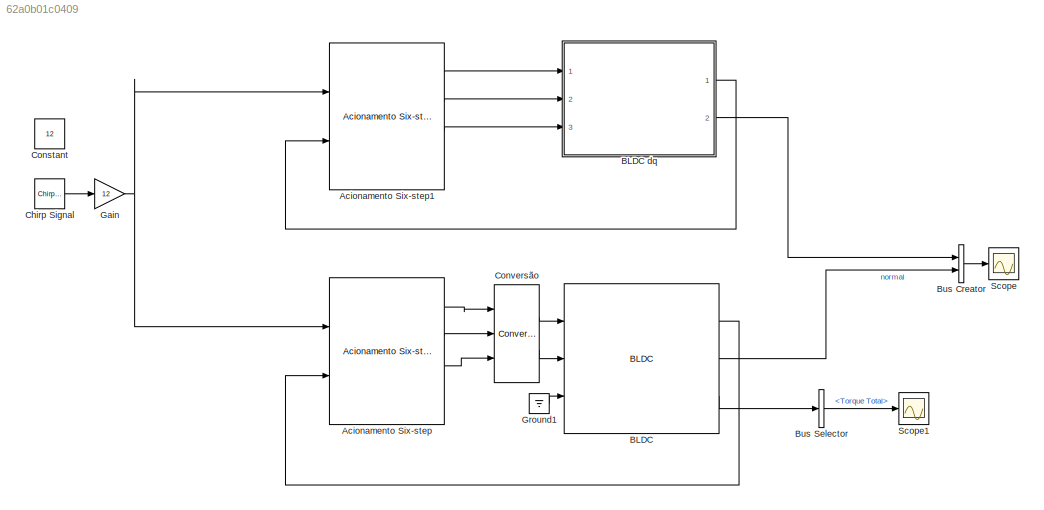
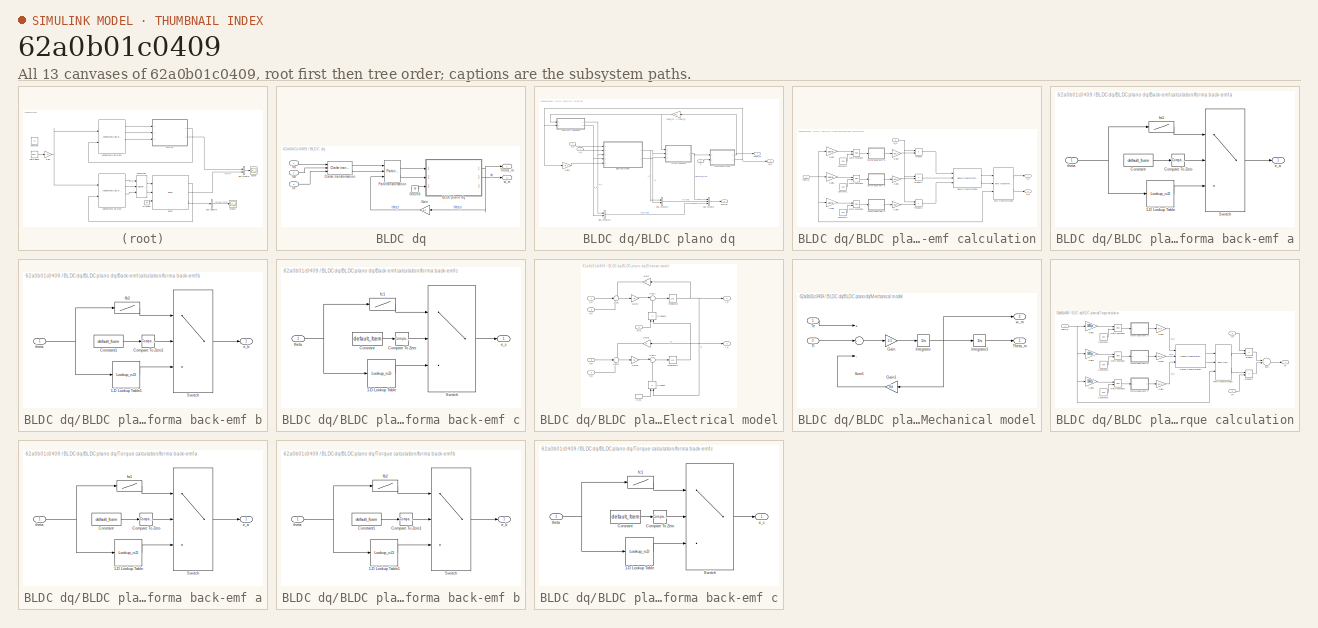
[diagram: thumbnail index - all 13 canvases of the model, root first then tree order]
MODEL slx_62a0b01c0409
KIND model
BLOCK [Reference] Acionamento Six-step  REF=BLDC/Acionamento Six-step
  P = 8
  Ports = [2, 4]
  SourceBlock = BLDC/Acionamento Six-step
  SourceType = Acionamento six-step
BLOCK [Reference] Acionamento Six-step1  REF=BLDC/Acionamento Six-step
  P = 8
  Ports = [2, 4]
  SourceBlock = BLDC/Acionamento Six-step
  SourceType = Acionamento six-step
BLOCK [Reference] BLDC  REF=BLDC/BLDC
  J = 1.39e-6
  Kd = 0
  Ke = 15.7e-3/1.19
  Kt = 15.7e-3/1.19
  L = 2.04/2000
  P = 8
  Ports = [3, 3]
  R = 10.1/2
  SourceBlock = BLDC/BLDC
  SourceType = Simulador de um motor BLDC
  default_fcem = on
  fcem_a = fcem_a
  fcem_b = fcem_b
  fcem_c = fcem_c
BLOCK [SubSystem] BLDC dq
  FunctionWithSeparateData = off
  MaskHideContents = off
  MinAlgLoopOccurrences = off
  Opaque = off
  Ports = [3, 2]
  PropExecContextOutsideSubsystem = off
  RTWSystemCode = Auto
  RequestExecContextInheritance = off
BLOCK [SubSystem] BLDC dq/BLDC plano dq
  FunctionWithSeparateData = off
  MaskHideContents = off
  MinAlgLoopOccurrences = off
  Opaque = off
  Ports = [3, 3]
  PropExecContextOutsideSubsystem = off
  RTWSystemCode = Auto
  RequestExecContextInheritance = off
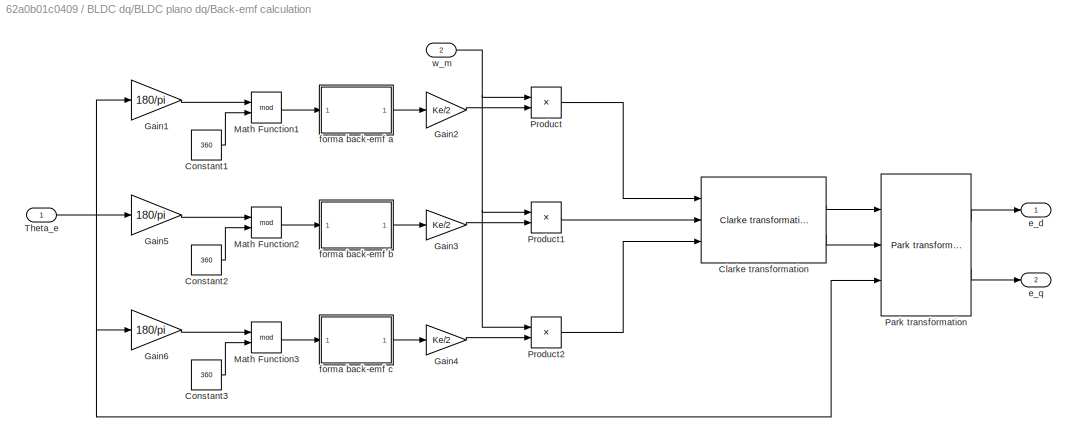
BLOCK [SubSystem] BLDC dq/BLDC plano dq/Back-emf calculation
  FunctionWithSeparateData = off
  MaskHideContents = off
  MinAlgLoopOccurrences = off
  Opaque = off
  Ports = [2, 2]
  PropExecContextOutsideSubsystem = off
  RTWSystemCode = Auto
  RequestExecContextInheritance = off
BLOCK [Reference] BLDC dq/BLDC plano dq/Back-emf calculation/Clarke transformation  REF=Tools/Clarke transformation
  Ports = [3, 2]
  SourceBlock = Tools/Clarke transformation
  SourceType = SubSystem
BLOCK [Constant] BLDC dq/BLDC plano dq/Back-emf calculation/Constant1
  Value = 360
BLOCK [Constant] BLDC dq/BLDC plano dq/Back-emf calculation/Constant2
  Value = 360
BLOCK [Constant] BLDC dq/BLDC plano dq/Back-emf calculation/Constant3
  Value = 360
BLOCK [Gain] BLDC dq/BLDC plano dq/Back-emf calculation/Gain1
  Gain = 180/pi
  OutDataTypeStr = Inherit: Inherit via internal rule
  ParamDataTypeStr = Inherit: Inherit via internal rule
  SaturateOnIntegerOverflow = off
BLOCK [Gain] BLDC dq/BLDC plano dq/Back-emf calculation/Gain2
  Gain = Ke/2
  OutDataTypeStr = Inherit: Inherit via internal rule
  ParamDataTypeStr = Inherit: Inherit via internal rule
  SaturateOnIntegerOverflow = off
BLOCK [Gain] BLDC dq/BLDC plano dq/Back-emf calculation/Gain3
  Gain = Ke/2
  OutDataTypeStr = Inherit: Inherit via internal rule
  ParamDataTypeStr = Inherit: Inherit via internal rule
  SaturateOnIntegerOverflow = off
BLOCK [Gain] BLDC dq/BLDC plano dq/Back-emf calculation/Gain4
  Gain = Ke/2
  OutDataTypeStr = Inherit: Inherit via internal rule
  ParamDataTypeStr = Inherit: Inherit via internal rule
  SaturateOnIntegerOverflow = off
BLOCK [Gain] BLDC dq/BLDC plano dq/Back-emf calculation/Gain5
  Gain = 180/pi
  OutDataTypeStr = Inherit: Inherit via internal rule
  ParamDataTypeStr = Inherit: Inherit via internal rule
  SaturateOnIntegerOverflow = off
BLOCK [Gain] BLDC dq/BLDC plano dq/Back-emf calculation/Gain6
  Gain = 180/pi
  OutDataTypeStr = Inherit: Inherit via internal rule
  ParamDataTypeStr = Inherit: Inherit via internal rule
  SaturateOnIntegerOverflow = off
BLOCK [Math] BLDC dq/BLDC plano dq/Back-emf calculation/Math Function1
  Operator = mod
  Ports = [2, 1]
BLOCK [Math] BLDC dq/BLDC plano dq/Back-emf calculation/Math Function2
  Operator = mod
  Ports = [2, 1]
BLOCK [Math] BLDC dq/BLDC plano dq/Back-emf calculation/Math Function3
  Operator = mod
  Ports = [2, 1]
BLOCK [Reference] BLDC dq/BLDC plano dq/Back-emf calculation/Park transformation   REF=Tools/Park transformation 
  Ports = [3, 2]
  SourceBlock = Tools/Park transformation
  SourceType = SubSystem
BLOCK [Product] BLDC dq/BLDC plano dq/Back-emf calculation/Product
  InputSameDT = off
  OutDataTypeStr = Inherit: Inherit via internal rule
  Ports = [2, 1]
  SaturateOnIntegerOverflow = off
BLOCK [Product] BLDC dq/BLDC plano dq/Back-emf calculation/Product1
  InputSameDT = off
  OutDataTypeStr = Inherit: Inherit via internal rule
  Ports = [2, 1]
  SaturateOnIntegerOverflow = off
BLOCK [Product] BLDC dq/BLDC plano dq/Back-emf calculation/Product2
  InputSameDT = off
  OutDataTypeStr = Inherit: Inherit via internal rule
  Ports = [2, 1]
  SaturateOnIntegerOverflow = off
BLOCK [Inport] BLDC dq/BLDC plano dq/Back-emf calculation/Theta_e
  IconDisplay = Port number
BLOCK [Outport] BLDC dq/BLDC plano dq/Back-emf calculation/e_d
  IconDisplay = Port number
BLOCK [Outport] BLDC dq/BLDC plano dq/Back-emf calculation/e_q
  IconDisplay = Port number
  Port = 2
BLOCK [SubSystem] BLDC dq/BLDC plano dq/Back-emf calculation/forma back-emf a
  FunctionWithSeparateData = off
  MaskHideContents = off
  MinAlgLoopOccurrences = off
  Opaque = off
  Ports = [1, 1]
  PropExecContextOutsideSubsystem = off
  RTWSystemCode = Auto
  RequestExecContextInheritance = off
BLOCK [Lookup_n-D] BLDC dq/BLDC plano dq/Back-emf calculation/forma back-emf a/1-D Lookup Table
  BreakpointsForDimension1 = fcem_a(:,1)
  NumberOfTableDimensions = 1
  Ports = [1, 1]
  RndMeth = Simplest
  Table = fcem_a(:,2)
BLOCK [Reference] BLDC dq/BLDC plano dq/Back-emf calculation/forma back-emf a/Compare To Zero  REF=simulink/Logic and Bit
Operations/Compare
To Zero
  OutDataTypeStr = boolean
  Ports = [1, 1]
  SourceBlock = simulink/Logic and Bit\nOperations/Compare\nTo Zero
  SourceType = Compare To Zero
  ZeroCross = on
  relop = >
BLOCK [Constant] BLDC dq/BLDC plano dq/Back-emf calculation/forma back-emf a/Constant
  Value = default_fcem
BLOCK [Switch] BLDC dq/BLDC plano dq/Back-emf calculation/forma back-emf a/Switch
  InputSameDT = off
  SaturateOnIntegerOverflow = off
BLOCK [Outport] BLDC dq/BLDC plano dq/Back-emf calculation/forma back-emf a/e_a
  IconDisplay = Port number
BLOCK [Lookup] BLDC dq/BLDC plano dq/Back-emf calculation/forma back-emf a/fa1
  InputValues = [0 30 60 90 120 150 180 210 240 270 300 330 360]
  SaturateOnIntegerOverflow = off
  Table = [ 1 1 1 0 -1 -1 -1 -1 -1 0 1 1 1]
BLOCK [Inport] BLDC dq/BLDC plano dq/Back-emf calculation/forma back-emf a/theta
  IconDisplay = Port number
BLOCK [SubSystem] BLDC dq/BLDC plano dq/Back-emf calculation/forma back-emf b
  FunctionWithSeparateData = off
  MaskHideContents = off
  MinAlgLoopOccurrences = off
  Opaque = off
  Ports = [1, 1]
  PropExecContextOutsideSubsystem = off
  RTWSystemCode = Auto
  RequestExecContextInheritance = off
BLOCK [Lookup_n-D] BLDC dq/BLDC plano dq/Back-emf calculation/forma back-emf b/1-D Lookup Table1
  BreakpointsForDimension1 = fcem_b(:,1)
  NumberOfTableDimensions = 1
  Ports = [1, 1]
  RndMeth = Simplest
  Table = fcem_b(:,2)
BLOCK [Reference] BLDC dq/BLDC plano dq/Back-emf calculation/forma back-emf b/Compare To Zero1  REF=simulink/Logic and Bit
Operations/Compare
To Zero
  OutDataTypeStr = boolean
  Ports = [1, 1]
  SourceBlock = simulink/Logic and Bit\nOperations/Compare\nTo Zero
  SourceType = Compare To Zero
  ZeroCross = on
  relop = >
BLOCK [Constant] BLDC dq/BLDC plano dq/Back-emf calculation/forma back-emf b/Constant1
  Value = default_fcem
BLOCK [Switch] BLDC dq/BLDC plano dq/Back-emf calculation/forma back-emf b/Switch
  InputSameDT = off
  SaturateOnIntegerOverflow = off
BLOCK [Outport] BLDC dq/BLDC plano dq/Back-emf calculation/forma back-emf b/e_b
  IconDisplay = Port number
BLOCK [Lookup] BLDC dq/BLDC plano dq/Back-emf calculation/forma back-emf b/fb2
  InputValues = [0 30 60 90 120 150 180 210 240 270 300 330 360]
  SaturateOnIntegerOverflow = off
  Table = [-1 0 1 1 1 1 1 0 -1 -1 -1 -1 -1]
BLOCK [Inport] BLDC dq/BLDC plano dq/Back-emf calculation/forma back-emf b/theta
  IconDisplay = Port number
BLOCK [SubSystem] BLDC dq/BLDC plano dq/Back-emf calculation/forma back-emf c
  FunctionWithSeparateData = off
  MaskHideContents = off
  MinAlgLoopOccurrences = off
  Opaque = off
  Ports = [1, 1]
  PropExecContextOutsideSubsystem = off
  RTWSystemCode = Auto
  RequestExecContextInheritance = off
BLOCK [Lookup_n-D] BLDC dq/BLDC plano dq/Back-emf calculation/forma back-emf c/1-D Lookup Table
  BreakpointsForDimension1 = fcem_c(:,1)
  NumberOfTableDimensions = 1
  Ports = [1, 1]
  RndMeth = Simplest
  Table = fcem_c(:,2)
BLOCK [Reference] BLDC dq/BLDC plano dq/Back-emf calculation/forma back-emf c/Compare To Zero  REF=simulink/Logic and Bit
Operations/Compare
To Zero
  OutDataTypeStr = boolean
  Ports = [1, 1]
  SourceBlock = simulink/Logic and Bit\nOperations/Compare\nTo Zero
  SourceType = Compare To Zero
  ZeroCross = on
  relop = >
BLOCK [Constant] BLDC dq/BLDC plano dq/Back-emf calculation/forma back-emf c/Constant
  Value = default_fcem
BLOCK [Switch] BLDC dq/BLDC plano dq/Back-emf calculation/forma back-emf c/Switch
  InputSameDT = off
  SaturateOnIntegerOverflow = off
BLOCK [Outport] BLDC dq/BLDC plano dq/Back-emf calculation/forma back-emf c/e_c
  IconDisplay = Port number
BLOCK [Lookup] BLDC dq/BLDC plano dq/Back-emf calculation/forma back-emf c/fc1
  InputValues = [0 30 60 90 120 150 180 210 240 270 300 330 360]
  SaturateOnIntegerOverflow = off
  Table = [-1 -1 -1 -1 -1 0 1 1 1 1 1 0 -1]
BLOCK [Inport] BLDC dq/BLDC plano dq/Back-emf calculation/forma back-emf c/theta
  IconDisplay = Port number
BLOCK [Inport] BLDC dq/BLDC plano dq/Back-emf calculation/w_m
  IconDisplay = Port number
  Port = 2
BLOCK [BusCreator] BLDC dq/BLDC plano dq/Bus Creator
  DisplayOption = bar
  Inputs = 3
  Ports = [3, 1]
BLOCK [BusCreator] BLDC dq/BLDC plano dq/Bus Creator1
  DisplayOption = bar
  Inputs = 2
  Ports = [2, 1]
BLOCK [BusCreator] BLDC dq/BLDC plano dq/Bus Creator2
  DisplayOption = bar
  Inputs = 2
  Ports = [2, 1]
BLOCK [SubSystem] BLDC dq/BLDC plano dq/Electrical model
  FunctionWithSeparateData = off
  MaskHideContents = off
  MinAlgLoopOccurrences = off
  Opaque = off
  Ports = [5, 2]
  PropExecContextOutsideSubsystem = off
  RTWSystemCode = Auto
  RequestExecContextInheritance = off
BLOCK [Gain] BLDC dq/BLDC plano dq/Electrical model/Gain
  Gain = R
  OutDataTypeStr = Inherit: Inherit via internal rule
  ParamDataTypeStr = Inherit: Inherit via internal rule
  SaturateOnIntegerOverflow = off
BLOCK [Gain] BLDC dq/BLDC plano dq/Electrical model/Gain1
  Gain = 1/L
  OutDataTypeStr = Inherit: Inherit via internal rule
  ParamDataTypeStr = Inherit: Inherit via internal rule
  SaturateOnIntegerOverflow = off
BLOCK [Gain] BLDC dq/BLDC plano dq/Electrical model/Gain2
  Gain = R
  OutDataTypeStr = Inherit: Inherit via internal rule
  ParamDataTypeStr = Inherit: Inherit via internal rule
  SaturateOnIntegerOverflow = off
BLOCK [Gain] BLDC dq/BLDC plano dq/Electrical model/Gain3
  Gain = 1/L
  OutDataTypeStr = Inherit: Inherit via internal rule
  ParamDataTypeStr = Inherit: Inherit via internal rule
  SaturateOnIntegerOverflow = off
BLOCK [Integrator] BLDC dq/BLDC plano dq/Electrical model/Integrator
  Ports = [1, 1]
BLOCK [Integrator] BLDC dq/BLDC plano dq/Electrical model/Integrator1
  Ports = [1, 1]
BLOCK [Product] BLDC dq/BLDC plano dq/Electrical model/Product
  InputSameDT = off
  OutDataTypeStr = Inherit: Inherit via internal rule
  Ports = [2, 1]
  SaturateOnIntegerOverflow = off
BLOCK [Product] BLDC dq/BLDC plano dq/Electrical model/Product1
  InputSameDT = off
  OutDataTypeStr = Inherit: Inherit via internal rule
  Ports = [2, 1]
  SaturateOnIntegerOverflow = off
BLOCK [Sum] BLDC dq/BLDC plano dq/Electrical model/Sum
  IconShape = round
  InputSameDT = off
  Inputs = -+-
  OutDataTypeStr = Inherit: Inherit via internal rule
  Ports = [3, 1]
  SaturateOnIntegerOverflow = off
BLOCK [Sum] BLDC dq/BLDC plano dq/Electrical model/Sum1
  IconShape = round
  InputSameDT = off
  Inputs = |++
  OutDataTypeStr = Inherit: Inherit via internal rule
  Ports = [2, 1]
  SaturateOnIntegerOverflow = off
BLOCK [Sum] BLDC dq/BLDC plano dq/Electrical model/Sum2
  IconShape = round
  InputSameDT = off
  Inputs = -+-
  OutDataTypeStr = Inherit: Inherit via internal rule
  Ports = [3, 1]
  SaturateOnIntegerOverflow = off
BLOCK [Sum] BLDC dq/BLDC plano dq/Electrical model/Sum3
  IconShape = round
  InputSameDT = off
  Inputs = |+-
  OutDataTypeStr = Inherit: Inherit via internal rule
  Ports = [2, 1]
  SaturateOnIntegerOverflow = off
BLOCK [Inport] BLDC dq/BLDC plano dq/Electrical model/e_d
  IconDisplay = Port number
  Port = 3
BLOCK [Inport] BLDC dq/BLDC plano dq/Electrical model/e_q
  IconDisplay = Port number
  Port = 4
BLOCK [Outport] BLDC dq/BLDC plano dq/Electrical model/i_d
  IconDisplay = Port number
BLOCK [Outport] BLDC dq/BLDC plano dq/Electrical model/i_q
  IconDisplay = Port number
  Port = 2
BLOCK [Inport] BLDC dq/BLDC plano dq/Electrical model/u_d
  IconDisplay = Port number
BLOCK [Inport] BLDC dq/BLDC plano dq/Electrical model/u_q
  IconDisplay = Port number
  Port = 2
BLOCK [Inport] BLDC dq/BLDC plano dq/Electrical model/w_e
  IconDisplay = Port number
  Port = 5
BLOCK [InportShadow] BLDC dq/BLDC plano dq/Electrical model/w_e1
  IconDisplay = Port number
  LatchByDelayingOutsideSignal = off
  LatchInputForFeedbackSignals = off
  Port = 5
BLOCK [Gain] BLDC dq/BLDC plano dq/Gain1
  Gain = P/2
  OutDataTypeStr = Inherit: Inherit via internal rule
  ParamDataTypeStr = Inherit: Inherit via internal rule
  SaturateOnIntegerOverflow = off
BLOCK [SubSystem] BLDC dq/BLDC plano dq/Mechanical model
  FunctionWithSeparateData = off
  MaskHideContents = off
  MinAlgLoopOccurrences = off
  Opaque = off
  Ports = [2, 2]
  PropExecContextOutsideSubsystem = off
  RTWSystemCode = Auto
  RequestExecContextInheritance = off
BLOCK [Gain] BLDC dq/BLDC plano dq/Mechanical model/Gain
  Gain = 1/J
  OutDataTypeStr = Inherit: Inherit via internal rule
  ParamDataTypeStr = Inherit: Inherit via internal rule
  SaturateOnIntegerOverflow = off
BLOCK [Gain] BLDC dq/BLDC plano dq/Mechanical model/Gain1
  Gain = Kd
  OutDataTypeStr = Inherit: Inherit via internal rule
  ParamDataTypeStr = Inherit: Inherit via internal rule
  SaturateOnIntegerOverflow = off
BLOCK [Integrator] BLDC dq/BLDC plano dq/Mechanical model/Integrator
  Ports = [1, 1]
BLOCK [Integrator] BLDC dq/BLDC plano dq/Mechanical model/Integrator1
  Ports = [1, 1]
BLOCK [Sum] BLDC dq/BLDC plano dq/Mechanical model/Sum1
  InputSameDT = off
  Inputs = +--
  OutDataTypeStr = Inherit: Inherit via internal rule
  Ports = [3, 1]
  SaturateOnIntegerOverflow = off
BLOCK [Inport] BLDC dq/BLDC plano dq/Mechanical model/Te
  IconDisplay = Port number
BLOCK [Outport] BLDC dq/BLDC plano dq/Mechanical model/Theta_m
  IconDisplay = Port number
BLOCK [Inport] BLDC dq/BLDC plano dq/Mechanical model/Tl
  IconDisplay = Port number
  Port = 2
BLOCK [Outport] BLDC dq/BLDC plano dq/Mechanical model/w_m
  IconDisplay = Port number
  Port = 2
BLOCK [Outport] BLDC dq/BLDC plano dq/Theta_m
  IconDisplay = Port number
BLOCK [Inport] BLDC dq/BLDC plano dq/Tl
  IconDisplay = Port number
  Port = 3
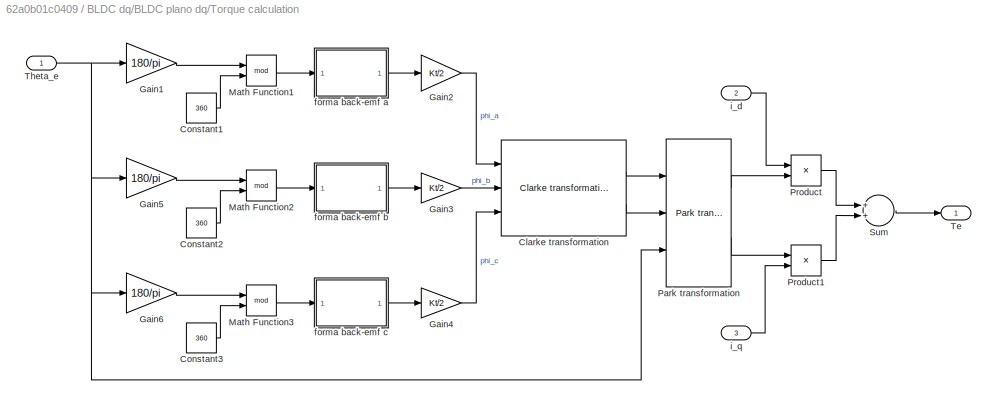
BLOCK [SubSystem] BLDC dq/BLDC plano dq/Torque calculation
  FunctionWithSeparateData = off
  MaskHideContents = off
  MinAlgLoopOccurrences = off
  Opaque = off
  Ports = [3, 1]
  PropExecContextOutsideSubsystem = off
  RTWSystemCode = Auto
  RequestExecContextInheritance = off
BLOCK [Reference] BLDC dq/BLDC plano dq/Torque calculation/Clarke transformation  REF=Tools/Clarke transformation
  Ports = [3, 2]
  SourceBlock = Tools/Clarke transformation
  SourceType = SubSystem
BLOCK [Constant] BLDC dq/BLDC plano dq/Torque calculation/Constant1
  Value = 360
BLOCK [Constant] BLDC dq/BLDC plano dq/Torque calculation/Constant2
  Value = 360
BLOCK [Constant] BLDC dq/BLDC plano dq/Torque calculation/Constant3
  Value = 360
BLOCK [Gain] BLDC dq/BLDC plano dq/Torque calculation/Gain1
  Gain = 180/pi
  OutDataTypeStr = Inherit: Inherit via internal rule
  ParamDataTypeStr = Inherit: Inherit via internal rule
  SaturateOnIntegerOverflow = off
BLOCK [Gain] BLDC dq/BLDC plano dq/Torque calculation/Gain2
  Gain = Kt/2
  OutDataTypeStr = Inherit: Inherit via internal rule
  ParamDataTypeStr = Inherit: Inherit via internal rule
  SaturateOnIntegerOverflow = off
BLOCK [Gain] BLDC dq/BLDC plano dq/Torque calculation/Gain3
  Gain = Kt/2
  OutDataTypeStr = Inherit: Inherit via internal rule
  ParamDataTypeStr = Inherit: Inherit via internal rule
  SaturateOnIntegerOverflow = off
BLOCK [Gain] BLDC dq/BLDC plano dq/Torque calculation/Gain4
  Gain = Kt/2
  OutDataTypeStr = Inherit: Inherit via internal rule
  ParamDataTypeStr = Inherit: Inherit via internal rule
  SaturateOnIntegerOverflow = off
BLOCK [Gain] BLDC dq/BLDC plano dq/Torque calculation/Gain5
  Gain = 180/pi
  OutDataTypeStr = Inherit: Inherit via internal rule
  ParamDataTypeStr = Inherit: Inherit via internal rule
  SaturateOnIntegerOverflow = off
BLOCK [Gain] BLDC dq/BLDC plano dq/Torque calculation/Gain6
  Gain = 180/pi
  OutDataTypeStr = Inherit: Inherit via internal rule
  ParamDataTypeStr = Inherit: Inherit via internal rule
  SaturateOnIntegerOverflow = off
BLOCK [Math] BLDC dq/BLDC plano dq/Torque calculation/Math Function1
  Operator = mod
  Ports = [2, 1]
BLOCK [Math] BLDC dq/BLDC plano dq/Torque calculation/Math Function2
  Operator = mod
  Ports = [2, 1]
BLOCK [Math] BLDC dq/BLDC plano dq/Torque calculation/Math Function3
  Operator = mod
  Ports = [2, 1]
BLOCK [Reference] BLDC dq/BLDC plano dq/Torque calculation/Park transformation   REF=Tools/Park transformation 
  Ports = [3, 2]
  SourceBlock = Tools/Park transformation
  SourceType = SubSystem
BLOCK [Product] BLDC dq/BLDC plano dq/Torque calculation/Product
  InputSameDT = off
  OutDataTypeStr = Inherit: Inherit via internal rule
  Ports = [2, 1]
  SaturateOnIntegerOverflow = off
BLOCK [Product] BLDC dq/BLDC plano dq/Torque calculation/Product1
  InputSameDT = off
  OutDataTypeStr = Inherit: Inherit via internal rule
  Ports = [2, 1]
  SaturateOnIntegerOverflow = off
BLOCK [Sum] BLDC dq/BLDC plano dq/Torque calculation/Sum
  InputSameDT = off
  OutDataTypeStr = Inherit: Inherit via internal rule
  Ports = [2, 1]
  SaturateOnIntegerOverflow = off
BLOCK [Outport] BLDC dq/BLDC plano dq/Torque calculation/Te
  IconDisplay = Port number
BLOCK [Inport] BLDC dq/BLDC plano dq/Torque calculation/Theta_e
  IconDisplay = Port number
BLOCK [SubSystem] BLDC dq/BLDC plano dq/Torque calculation/forma back-emf a
  FunctionWithSeparateData = off
  MaskHideContents = off
  MinAlgLoopOccurrences = off
  Opaque = off
  Ports = [1, 1]
  PropExecContextOutsideSubsystem = off
  RTWSystemCode = Auto
  RequestExecContextInheritance = off
BLOCK [Lookup_n-D] BLDC dq/BLDC plano dq/Torque calculation/forma back-emf a/1-D Lookup Table
  BreakpointsForDimension1 = fcem_a(:,1)
  NumberOfTableDimensions = 1
  Ports = [1, 1]
  RndMeth = Simplest
  Table = fcem_a(:,2)
BLOCK [Reference] BLDC dq/BLDC plano dq/Torque calculation/forma back-emf a/Compare To Zero  REF=simulink/Logic and Bit
Operations/Compare
To Zero
  OutDataTypeStr = boolean
  Ports = [1, 1]
  SourceBlock = simulink/Logic and Bit\nOperations/Compare\nTo Zero
  SourceType = Compare To Zero
  ZeroCross = on
  relop = >
BLOCK [Constant] BLDC dq/BLDC plano dq/Torque calculation/forma back-emf a/Constant
  Value = default_fcem
BLOCK [Switch] BLDC dq/BLDC plano dq/Torque calculation/forma back-emf a/Switch
  InputSameDT = off
  SaturateOnIntegerOverflow = off
BLOCK [Outport] BLDC dq/BLDC plano dq/Torque calculation/forma back-emf a/e_a
  IconDisplay = Port number
BLOCK [Lookup] BLDC dq/BLDC plano dq/Torque calculation/forma back-emf a/fa1
  InputValues = [0 30 60 90 120 150 180 210 240 270 300 330 360]
  SaturateOnIntegerOverflow = off
  Table = [ 1 1 1 0 -1 -1 -1 -1 -1 0 1 1 1]
BLOCK [Inport] BLDC dq/BLDC plano dq/Torque calculation/forma back-emf a/theta
  IconDisplay = Port number
BLOCK [SubSystem] BLDC dq/BLDC plano dq/Torque calculation/forma back-emf b
  FunctionWithSeparateData = off
  MaskHideContents = off
  MinAlgLoopOccurrences = off
  Opaque = off
  Ports = [1, 1]
  PropExecContextOutsideSubsystem = off
  RTWSystemCode = Auto
  RequestExecContextInheritance = off
BLOCK [Lookup_n-D] BLDC dq/BLDC plano dq/Torque calculation/forma back-emf b/1-D Lookup Table1
  BreakpointsForDimension1 = fcem_b(:,1)
  NumberOfTableDimensions = 1
  Ports = [1, 1]
  RndMeth = Simplest
  Table = fcem_b(:,2)
BLOCK [Reference] BLDC dq/BLDC plano dq/Torque calculation/forma back-emf b/Compare To Zero1  REF=simulink/Logic and Bit
Operations/Compare
To Zero
  OutDataTypeStr = boolean
  Ports = [1, 1]
  SourceBlock = simulink/Logic and Bit\nOperations/Compare\nTo Zero
  SourceType = Compare To Zero
  ZeroCross = on
  relop = >
BLOCK [Constant] BLDC dq/BLDC plano dq/Torque calculation/forma back-emf b/Constant1
  Value = default_fcem
BLOCK [Switch] BLDC dq/BLDC plano dq/Torque calculation/forma back-emf b/Switch
  InputSameDT = off
  SaturateOnIntegerOverflow = off
BLOCK [Outport] BLDC dq/BLDC plano dq/Torque calculation/forma back-emf b/e_b
  IconDisplay = Port number
BLOCK [Lookup] BLDC dq/BLDC plano dq/Torque calculation/forma back-emf b/fb2
  InputValues = [0 30 60 90 120 150 180 210 240 270 300 330 360]
  SaturateOnIntegerOverflow = off
  Table = [-1 0 1 1 1 1 1 0 -1 -1 -1 -1 -1]
BLOCK [Inport] BLDC dq/BLDC plano dq/Torque calculation/forma back-emf b/theta
  IconDisplay = Port number
BLOCK [SubSystem] BLDC dq/BLDC plano dq/Torque calculation/forma back-emf c
  FunctionWithSeparateData = off
  MaskHideContents = off
  MinAlgLoopOccurrences = off
  Opaque = off
  Ports = [1, 1]
  PropExecContextOutsideSubsystem = off
  RTWSystemCode = Auto
  RequestExecContextInheritance = off
BLOCK [Lookup_n-D] BLDC dq/BLDC plano dq/Torque calculation/forma back-emf c/1-D Lookup Table
  BreakpointsForDimension1 = fcem_c(:,1)
  NumberOfTableDimensions = 1
  Ports = [1, 1]
  RndMeth = Simplest
  Table = fcem_c(:,2)
BLOCK [Reference] BLDC dq/BLDC plano dq/Torque calculation/forma back-emf c/Compare To Zero  REF=simulink/Logic and Bit
Operations/Compare
To Zero
  OutDataTypeStr = boolean
  Ports = [1, 1]
  SourceBlock = simulink/Logic and Bit\nOperations/Compare\nTo Zero
  SourceType = Compare To Zero
  ZeroCross = on
  relop = >
BLOCK [Constant] BLDC dq/BLDC plano dq/Torque calculation/forma back-emf c/Constant
  Value = default_fcem
BLOCK [Switch] BLDC dq/BLDC plano dq/Torque calculation/forma back-emf c/Switch
  InputSameDT = off
  SaturateOnIntegerOverflow = off
BLOCK [Outport] BLDC dq/BLDC plano dq/Torque calculation/forma back-emf c/e_c
  IconDisplay = Port number
BLOCK [Lookup] BLDC dq/BLDC plano dq/Torque calculation/forma back-emf c/fc1
  InputValues = [0 30 60 90 120 150 180 210 240 270 300 330 360]
  SaturateOnIntegerOverflow = off
  Table = [-1 -1 -1 -1 -1 0 1 1 1 1 1 0 -1]
BLOCK [Inport] BLDC dq/BLDC plano dq/Torque calculation/forma back-emf c/theta
  IconDisplay = Port number
BLOCK [Inport] BLDC dq/BLDC plano dq/Torque calculation/i_d
  IconDisplay = Port number
  Port = 2
BLOCK [Inport] BLDC dq/BLDC plano dq/Torque calculation/i_q
  IconDisplay = Port number
  Port = 3
BLOCK [Outport] BLDC dq/BLDC plano dq/internal
  IconDisplay = Port number
  Port = 3
BLOCK [Gain] BLDC dq/BLDC plano dq/theta_m -> theta_e
  Gain = P/2
  OutDataTypeStr = Inherit: Inherit via internal rule
  ParamDataTypeStr = Inherit: Inherit via internal rule
  SaturateOnIntegerOverflow = off
BLOCK [Inport] BLDC dq/BLDC plano dq/u_d
  IconDisplay = Port number
BLOCK [Inport] BLDC dq/BLDC plano dq/u_q
  IconDisplay = Port number
  Port = 2
BLOCK [Outport] BLDC dq/BLDC plano dq/w_m
  IconDisplay = Port number
  Port = 2
BLOCK [Reference] BLDC dq/Clarke transformation  REF=Tools/Clarke transformation
  Ports = [3, 2]
  SourceBlock = Tools/Clarke transformation
  SourceType = SubSystem
BLOCK [Gain] BLDC dq/Gain
  Gain = 8/2
  OutDataTypeStr = Inherit: Inherit via internal rule
  ParamDataTypeStr = Inherit: Inherit via internal rule
  SaturateOnIntegerOverflow = off
BLOCK [Ground] BLDC dq/Ground
BLOCK [Reference] BLDC dq/Park transformation   REF=Tools/Park transformation 
  Ports = [3, 2]
  SourceBlock = Tools/Park transformation
  SourceType = SubSystem
BLOCK [Outport] BLDC dq/Theta_m
  IconDisplay = Port number
BLOCK [Inport] BLDC dq/Va
  IconDisplay = Port number
BLOCK [Inport] BLDC dq/Vb
  IconDisplay = Port number
  Port = 2
BLOCK [Inport] BLDC dq/Vc
  IconDisplay = Port number
  Port = 3
BLOCK [Outport] BLDC dq/w_m
  IconDisplay = Port number
  Port = 2
BLOCK [BusCreator] Bus Creator
  DisplayOption = bar
  Inputs = 2
  Ports = [2, 1]
BLOCK [BusSelector] Bus Selector
  OutputSignals = Torque Total
  Ports = [1, 1]
BLOCK [Reference] Chirp Signal  REF=simulink/Sources/Chirp Signal
  Ports = [0, 1]
  SourceBlock = simulink/Sources/Chirp Signal
  SourceType = chirp
  T = 2
  VectorParams1D = on
  f1 = 0.1
  f2 = 10
BLOCK [Constant] Constant
  Value = 12
BLOCK [Reference] Conversão  REF=BLDC/Conversão
  Ports = [3, 2]
  SourceBlock = BLDC/Conversão
  SourceType = SubSystem
BLOCK [Gain] Gain
  Gain = 12
  OutDataTypeStr = Inherit: Inherit via internal rule
  ParamDataTypeStr = Inherit: Inherit via internal rule
  SaturateOnIntegerOverflow = off
BLOCK [Ground] Ground1
BLOCK [Scope] Scope
  DataFormat = StructureWithTime
  Floating = off
  LimitDataPoints = off
  NumInputPorts = 1
  Ports = [1]
  SampleTime = 0
  ShowLegends = on
  YMax = 825
  YMin = 475
BLOCK [Scope] Scope1
  DataFormat = StructureWithTime
  Floating = off
  LegendLocations = 0.91606     0.94198    0.068229    0.020518
  LimitDataPoints = off
  NumInputPorts = 1
  Ports = [1]
  SampleTime = 0
  SaveName = ScopeData1
  ShowLegends = on
  YMax = 0.00175
  YMin = -0.00175
  ZoomMode = xonly
LINE Acionamento Six-step1:1 -> BLDC dq:1
LINE Acionamento Six-step1:2 -> BLDC dq:2
LINE Acionamento Six-step1:3 -> BLDC dq:3
LINE Acionamento Six-step:1 -> Conversão:1
LINE Acionamento Six-step:2 -> Conversão:2
LINE Acionamento Six-step:3 -> Conversão:3
LINE BLDC dq/BLDC plano dq/Back-emf calculation/Clarke transformation:1 -> BLDC dq/BLDC plano dq/Back-emf calculation/Park transformation :1
LINE BLDC dq/BLDC plano dq/Back-emf calculation/Clarke transformation:2 -> BLDC dq/BLDC plano dq/Back-emf calculation/Park transformation :2
LINE BLDC dq/BLDC plano dq/Back-emf calculation/Constant1:1 -> BLDC dq/BLDC plano dq/Back-emf calculation/Math Function1:2
LINE BLDC dq/BLDC plano dq/Back-emf calculation/Constant2:1 -> BLDC dq/BLDC plano dq/Back-emf calculation/Math Function2:2
LINE BLDC dq/BLDC plano dq/Back-emf calculation/Constant3:1 -> BLDC dq/BLDC plano dq/Back-emf calculation/Math Function3:2
LINE BLDC dq/BLDC plano dq/Back-emf calculation/Gain1:1 -> BLDC dq/BLDC plano dq/Back-emf calculation/Math Function1:1
LINE BLDC dq/BLDC plano dq/Back-emf calculation/Gain2:1 -> BLDC dq/BLDC plano dq/Back-emf calculation/Product:2
LINE BLDC dq/BLDC plano dq/Back-emf calculation/Gain3:1 -> BLDC dq/BLDC plano dq/Back-emf calculation/Product1:2
LINE BLDC dq/BLDC plano dq/Back-emf calculation/Gain4:1 -> BLDC dq/BLDC plano dq/Back-emf calculation/Product2:2
LINE BLDC dq/BLDC plano dq/Back-emf calculation/Gain5:1 -> BLDC dq/BLDC plano dq/Back-emf calculation/Math Function2:1
LINE BLDC dq/BLDC plano dq/Back-emf calculation/Gain6:1 -> BLDC dq/BLDC plano dq/Back-emf calculation/Math Function3:1
LINE BLDC dq/BLDC plano dq/Back-emf calculation/Math Function1:1 -> BLDC dq/BLDC plano dq/Back-emf calculation/forma back-emf a:1
LINE BLDC dq/BLDC plano dq/Back-emf calculation/Math Function2:1 -> BLDC dq/BLDC plano dq/Back-emf calculation/forma back-emf b:1
LINE BLDC dq/BLDC plano dq/Back-emf calculation/Math Function3:1 -> BLDC dq/BLDC plano dq/Back-emf calculation/forma back-emf c:1
LINE BLDC dq/BLDC plano dq/Back-emf calculation/Park transformation :1 -> BLDC dq/BLDC plano dq/Back-emf calculation/e_d:1
LINE BLDC dq/BLDC plano dq/Back-emf calculation/Park transformation :2 -> BLDC dq/BLDC plano dq/Back-emf calculation/e_q:1
LINE BLDC dq/BLDC plano dq/Back-emf calculation/Product1:1 -> BLDC dq/BLDC plano dq/Back-emf calculation/Clarke transformation:2
LINE BLDC dq/BLDC plano dq/Back-emf calculation/Product2:1 -> BLDC dq/BLDC plano dq/Back-emf calculation/Clarke transformation:3
LINE BLDC dq/BLDC plano dq/Back-emf calculation/Product:1 -> BLDC dq/BLDC plano dq/Back-emf calculation/Clarke transformation:1
NET BLDC dq/BLDC plano dq/Back-emf calculation/Theta_e:1 -> BLDC dq/BLDC plano dq/Back-emf calculation/Gain1:1, BLDC dq/BLDC plano dq/Back-emf calculation/Gain5:1, BLDC dq/BLDC plano dq/Back-emf calculation/Gain6:1, BLDC dq/BLDC plano dq/Back-emf calculation/Park transformation :3
LINE BLDC dq/BLDC plano dq/Back-emf calculation/forma back-emf a/1-D Lookup Table:1 -> BLDC dq/BLDC plano dq/Back-emf calculation/forma back-emf a/Switch:3
LINE BLDC dq/BLDC plano dq/Back-emf calculation/forma back-emf a/Compare To Zero:1 -> BLDC dq/BLDC plano dq/Back-emf calculation/forma back-emf a/Switch:2
LINE BLDC dq/BLDC plano dq/Back-emf calculation/forma back-emf a/Constant:1 -> BLDC dq/BLDC plano dq/Back-emf calculation/forma back-emf a/Compare To Zero:1
LINE BLDC dq/BLDC plano dq/Back-emf calculation/forma back-emf a/Switch:1 -> BLDC dq/BLDC plano dq/Back-emf calculation/forma back-emf a/e_a:1
LINE BLDC dq/BLDC plano dq/Back-emf calculation/forma back-emf a/fa1:1 -> BLDC dq/BLDC plano dq/Back-emf calculation/forma back-emf a/Switch:1
NET BLDC dq/BLDC plano dq/Back-emf calculation/forma back-emf a/theta:1 -> BLDC dq/BLDC plano dq/Back-emf calculation/forma back-emf a/1-D Lookup Table:1, BLDC dq/BLDC plano dq/Back-emf calculation/forma back-emf a/fa1:1
LINE BLDC dq/BLDC plano dq/Back-emf calculation/forma back-emf a:1 -> BLDC dq/BLDC plano dq/Back-emf calculation/Gain2:1
LINE BLDC dq/BLDC plano dq/Back-emf calculation/forma back-emf b/1-D Lookup Table1:1 -> BLDC dq/BLDC plano dq/Back-emf calculation/forma back-emf b/Switch:3
LINE BLDC dq/BLDC plano dq/Back-emf calculation/forma back-emf b/Compare To Zero1:1 -> BLDC dq/BLDC plano dq/Back-emf calculation/forma back-emf b/Switch:2
LINE BLDC dq/BLDC plano dq/Back-emf calculation/forma back-emf b/Constant1:1 -> BLDC dq/BLDC plano dq/Back-emf calculation/forma back-emf b/Compare To Zero1:1
LINE BLDC dq/BLDC plano dq/Back-emf calculation/forma back-emf b/Switch:1 -> BLDC dq/BLDC plano dq/Back-emf calculation/forma back-emf b/e_b:1
LINE BLDC dq/BLDC plano dq/Back-emf calculation/forma back-emf b/fb2:1 -> BLDC dq/BLDC plano dq/Back-emf calculation/forma back-emf b/Switch:1
NET BLDC dq/BLDC plano dq/Back-emf calculation/forma back-emf b/theta:1 -> BLDC dq/BLDC plano dq/Back-emf calculation/forma back-emf b/1-D Lookup Table1:1, BLDC dq/BLDC plano dq/Back-emf calculation/forma back-emf b/fb2:1
LINE BLDC dq/BLDC plano dq/Back-emf calculation/forma back-emf b:1 -> BLDC dq/BLDC plano dq/Back-emf calculation/Gain3:1
LINE BLDC dq/BLDC plano dq/Back-emf calculation/forma back-emf c/1-D Lookup Table:1 -> BLDC dq/BLDC plano dq/Back-emf calculation/forma back-emf c/Switch:3
LINE BLDC dq/BLDC plano dq/Back-emf calculation/forma back-emf c/Compare To Zero:1 -> BLDC dq/BLDC plano dq/Back-emf calculation/forma back-emf c/Switch:2
LINE BLDC dq/BLDC plano dq/Back-emf calculation/forma back-emf c/Constant:1 -> BLDC dq/BLDC plano dq/Back-emf calculation/forma back-emf c/Compare To Zero:1
LINE BLDC dq/BLDC plano dq/Back-emf calculation/forma back-emf c/Switch:1 -> BLDC dq/BLDC plano dq/Back-emf calculation/forma back-emf c/e_c:1
LINE BLDC dq/BLDC plano dq/Back-emf calculation/forma back-emf c/fc1:1 -> BLDC dq/BLDC plano dq/Back-emf calculation/forma back-emf c/Switch:1
NET BLDC dq/BLDC plano dq/Back-emf calculation/forma back-emf c/theta:1 -> BLDC dq/BLDC plano dq/Back-emf calculation/forma back-emf c/1-D Lookup Table:1, BLDC dq/BLDC plano dq/Back-emf calculation/forma back-emf c/fc1:1
LINE BLDC dq/BLDC plano dq/Back-emf calculation/forma back-emf c:1 -> BLDC dq/BLDC plano dq/Back-emf calculation/Gain4:1
NET BLDC dq/BLDC plano dq/Back-emf calculation/w_m:1 -> BLDC dq/BLDC plano dq/Back-emf calculation/Product1:1, BLDC dq/BLDC plano dq/Back-emf calculation/Product2:1, BLDC dq/BLDC plano dq/Back-emf calculation/Product:1
NET BLDC dq/BLDC plano dq/Back-emf calculation:1 -> BLDC dq/BLDC plano dq/Bus Creator2:1, BLDC dq/BLDC plano dq/Electrical model:3
NET BLDC dq/BLDC plano dq/Back-emf calculation:2 -> BLDC dq/BLDC plano dq/Bus Creator2:2, BLDC dq/BLDC plano dq/Electrical model:4
LINE BLDC dq/BLDC plano dq/Bus Creator1:1 -> BLDC dq/BLDC plano dq/Bus Creator:2
LINE BLDC dq/BLDC plano dq/Bus Creator2:1 -> BLDC dq/BLDC plano dq/Bus Creator:3
LINE BLDC dq/BLDC plano dq/Bus Creator:1 -> BLDC dq/BLDC plano dq/internal:1
LINE BLDC dq/BLDC plano dq/Electrical model/Gain1:1 -> BLDC dq/BLDC plano dq/Electrical model/Sum1:1
LINE BLDC dq/BLDC plano dq/Electrical model/Gain2:1 -> BLDC dq/BLDC plano dq/Electrical model/Sum2:1
LINE BLDC dq/BLDC plano dq/Electrical model/Gain3:1 -> BLDC dq/BLDC plano dq/Electrical model/Sum3:1
LINE BLDC dq/BLDC plano dq/Electrical model/Gain:1 -> BLDC dq/BLDC plano dq/Electrical model/Sum:1
NET BLDC dq/BLDC plano dq/Electrical model/Integrator1:1 -> BLDC dq/BLDC plano dq/Electrical model/Gain2:1, BLDC dq/BLDC plano dq/Electrical model/Product1:2, BLDC dq/BLDC plano dq/Electrical model/i_q:1
NET BLDC dq/BLDC plano dq/Electrical model/Integrator:1 -> BLDC dq/BLDC plano dq/Electrical model/Gain:1, BLDC dq/BLDC plano dq/Electrical model/Product:2, BLDC dq/BLDC plano dq/Electrical model/i_d:1
LINE BLDC dq/BLDC plano dq/Electrical model/Product1:1 -> BLDC dq/BLDC plano dq/Electrical model/Sum1:2
LINE BLDC dq/BLDC plano dq/Electrical model/Product:1 -> BLDC dq/BLDC plano dq/Electrical model/Sum3:2
LINE BLDC dq/BLDC plano dq/Electrical model/Sum1:1 -> BLDC dq/BLDC plano dq/Electrical model/Integrator:1
LINE BLDC dq/BLDC plano dq/Electrical model/Sum2:1 -> BLDC dq/BLDC plano dq/Electrical model/Gain3:1
LINE BLDC dq/BLDC plano dq/Electrical model/Sum3:1 -> BLDC dq/BLDC plano dq/Electrical model/Integrator1:1
LINE BLDC dq/BLDC plano dq/Electrical model/Sum:1 -> BLDC dq/BLDC plano dq/Electrical model/Gain1:1
LINE BLDC dq/BLDC plano dq/Electrical model/e_d:1 -> BLDC dq/BLDC plano dq/Electrical model/Sum:3
LINE BLDC dq/BLDC plano dq/Electrical model/e_q:1 -> BLDC dq/BLDC plano dq/Electrical model/Sum2:3
LINE BLDC dq/BLDC plano dq/Electrical model/u_d:1 -> BLDC dq/BLDC plano dq/Electrical model/Sum:2
LINE BLDC dq/BLDC plano dq/Electrical model/u_q:1 -> BLDC dq/BLDC plano dq/Electrical model/Sum2:2
LINE BLDC dq/BLDC plano dq/Electrical model/w_e1:1 -> BLDC dq/BLDC plano dq/Electrical model/Product:1
LINE BLDC dq/BLDC plano dq/Electrical model/w_e:1 -> BLDC dq/BLDC plano dq/Electrical model/Product1:1
NET BLDC dq/BLDC plano dq/Electrical model:1 -> BLDC dq/BLDC plano dq/Bus Creator1:1, BLDC dq/BLDC plano dq/Torque calculation:2
NET BLDC dq/BLDC plano dq/Electrical model:2 -> BLDC dq/BLDC plano dq/Bus Creator1:2, BLDC dq/BLDC plano dq/Torque calculation:3
LINE BLDC dq/BLDC plano dq/Gain1:1 -> BLDC dq/BLDC plano dq/Electrical model:5
LINE BLDC dq/BLDC plano dq/Mechanical model/Gain1:1 -> BLDC dq/BLDC plano dq/Mechanical model/Sum1:3
LINE BLDC dq/BLDC plano dq/Mechanical model/Gain:1 -> BLDC dq/BLDC plano dq/Mechanical model/Integrator:1
LINE BLDC dq/BLDC plano dq/Mechanical model/Integrator1:1 -> BLDC dq/BLDC plano dq/Mechanical model/Theta_m:1
NET BLDC dq/BLDC plano dq/Mechanical model/Integrator:1 -> BLDC dq/BLDC plano dq/Mechanical model/Gain1:1, BLDC dq/BLDC plano dq/Mechanical model/Integrator1:1, BLDC dq/BLDC plano dq/Mechanical model/w_m:1
LINE BLDC dq/BLDC plano dq/Mechanical model/Sum1:1 -> BLDC dq/BLDC plano dq/Mechanical model/Gain:1
LINE BLDC dq/BLDC plano dq/Mechanical model/Te:1 -> BLDC dq/BLDC plano dq/Mechanical model/Sum1:1
LINE BLDC dq/BLDC plano dq/Mechanical model/Tl:1 -> BLDC dq/BLDC plano dq/Mechanical model/Sum1:2
NET BLDC dq/BLDC plano dq/Mechanical model:1 -> BLDC dq/BLDC plano dq/Theta_m:1, BLDC dq/BLDC plano dq/theta_m -> theta_e:1
NET BLDC dq/BLDC plano dq/Mechanical model:2 -> BLDC dq/BLDC plano dq/Back-emf calculation:2, BLDC dq/BLDC plano dq/Gain1:1, BLDC dq/BLDC plano dq/w_m:1
LINE BLDC dq/BLDC plano dq/Tl:1 -> BLDC dq/BLDC plano dq/Mechanical model:2
LINE BLDC dq/BLDC plano dq/Torque calculation/Clarke transformation:1 -> BLDC dq/BLDC plano dq/Torque calculation/Park transformation :1
LINE BLDC dq/BLDC plano dq/Torque calculation/Clarke transformation:2 -> BLDC dq/BLDC plano dq/Torque calculation/Park transformation :2
LINE BLDC dq/BLDC plano dq/Torque calculation/Constant1:1 -> BLDC dq/BLDC plano dq/Torque calculation/Math Function1:2
LINE BLDC dq/BLDC plano dq/Torque calculation/Constant2:1 -> BLDC dq/BLDC plano dq/Torque calculation/Math Function2:2
LINE BLDC dq/BLDC plano dq/Torque calculation/Constant3:1 -> BLDC dq/BLDC plano dq/Torque calculation/Math Function3:2
LINE BLDC dq/BLDC plano dq/Torque calculation/Gain1:1 -> BLDC dq/BLDC plano dq/Torque calculation/Math Function1:1
LINE BLDC dq/BLDC plano dq/Torque calculation/Gain2:1 -> BLDC dq/BLDC plano dq/Torque calculation/Clarke transformation:1
LINE BLDC dq/BLDC plano dq/Torque calculation/Gain3:1 -> BLDC dq/BLDC plano dq/Torque calculation/Clarke transformation:2
LINE BLDC dq/BLDC plano dq/Torque calculation/Gain4:1 -> BLDC dq/BLDC plano dq/Torque calculation/Clarke transformation:3
LINE BLDC dq/BLDC plano dq/Torque calculation/Gain5:1 -> BLDC dq/BLDC plano dq/Torque calculation/Math Function2:1
LINE BLDC dq/BLDC plano dq/Torque calculation/Gain6:1 -> BLDC dq/BLDC plano dq/Torque calculation/Math Function3:1
LINE BLDC dq/BLDC plano dq/Torque calculation/Math Function1:1 -> BLDC dq/BLDC plano dq/Torque calculation/forma back-emf a:1
LINE BLDC dq/BLDC plano dq/Torque calculation/Math Function2:1 -> BLDC dq/BLDC plano dq/Torque calculation/forma back-emf b:1
LINE BLDC dq/BLDC plano dq/Torque calculation/Math Function3:1 -> BLDC dq/BLDC plano dq/Torque calculation/forma back-emf c:1
LINE BLDC dq/BLDC plano dq/Torque calculation/Park transformation :1 -> BLDC dq/BLDC plano dq/Torque calculation/Product:2
LINE BLDC dq/BLDC plano dq/Torque calculation/Park transformation :2 -> BLDC dq/BLDC plano dq/Torque calculation/Product1:1
LINE BLDC dq/BLDC plano dq/Torque calculation/Product1:1 -> BLDC dq/BLDC plano dq/Torque calculation/Sum:2
LINE BLDC dq/BLDC plano dq/Torque calculation/Product:1 -> BLDC dq/BLDC plano dq/Torque calculation/Sum:1
LINE BLDC dq/BLDC plano dq/Torque calculation/Sum:1 -> BLDC dq/BLDC plano dq/Torque calculation/Te:1
NET BLDC dq/BLDC plano dq/Torque calculation/Theta_e:1 -> BLDC dq/BLDC plano dq/Torque calculation/Gain1:1, BLDC dq/BLDC plano dq/Torque calculation/Gain5:1, BLDC dq/BLDC plano dq/Torque calculation/Gain6:1, BLDC dq/BLDC plano dq/Torque calculation/Park transformation :3
LINE BLDC dq/BLDC plano dq/Torque calculation/forma back-emf a/1-D Lookup Table:1 -> BLDC dq/BLDC plano dq/Torque calculation/forma back-emf a/Switch:3
LINE BLDC dq/BLDC plano dq/Torque calculation/forma back-emf a/Compare To Zero:1 -> BLDC dq/BLDC plano dq/Torque calculation/forma back-emf a/Switch:2
LINE BLDC dq/BLDC plano dq/Torque calculation/forma back-emf a/Constant:1 -> BLDC dq/BLDC plano dq/Torque calculation/forma back-emf a/Compare To Zero:1
LINE BLDC dq/BLDC plano dq/Torque calculation/forma back-emf a/Switch:1 -> BLDC dq/BLDC plano dq/Torque calculation/forma back-emf a/e_a:1
LINE BLDC dq/BLDC plano dq/Torque calculation/forma back-emf a/fa1:1 -> BLDC dq/BLDC plano dq/Torque calculation/forma back-emf a/Switch:1
NET BLDC dq/BLDC plano dq/Torque calculation/forma back-emf a/theta:1 -> BLDC dq/BLDC plano dq/Torque calculation/forma back-emf a/1-D Lookup Table:1, BLDC dq/BLDC plano dq/Torque calculation/forma back-emf a/fa1:1
LINE BLDC dq/BLDC plano dq/Torque calculation/forma back-emf a:1 -> BLDC dq/BLDC plano dq/Torque calculation/Gain2:1
LINE BLDC dq/BLDC plano dq/Torque calculation/forma back-emf b/1-D Lookup Table1:1 -> BLDC dq/BLDC plano dq/Torque calculation/forma back-emf b/Switch:3
LINE BLDC dq/BLDC plano dq/Torque calculation/forma back-emf b/Compare To Zero1:1 -> BLDC dq/BLDC plano dq/Torque calculation/forma back-emf b/Switch:2
LINE BLDC dq/BLDC plano dq/Torque calculation/forma back-emf b/Constant1:1 -> BLDC dq/BLDC plano dq/Torque calculation/forma back-emf b/Compare To Zero1:1
LINE BLDC dq/BLDC plano dq/Torque calculation/forma back-emf b/Switch:1 -> BLDC dq/BLDC plano dq/Torque calculation/forma back-emf b/e_b:1
LINE BLDC dq/BLDC plano dq/Torque calculation/forma back-emf b/fb2:1 -> BLDC dq/BLDC plano dq/Torque calculation/forma back-emf b/Switch:1
NET BLDC dq/BLDC plano dq/Torque calculation/forma back-emf b/theta:1 -> BLDC dq/BLDC plano dq/Torque calculation/forma back-emf b/1-D Lookup Table1:1, BLDC dq/BLDC plano dq/Torque calculation/forma back-emf b/fb2:1
LINE BLDC dq/BLDC plano dq/Torque calculation/forma back-emf b:1 -> BLDC dq/BLDC plano dq/Torque calculation/Gain3:1
LINE BLDC dq/BLDC plano dq/Torque calculation/forma back-emf c/1-D Lookup Table:1 -> BLDC dq/BLDC plano dq/Torque calculation/forma back-emf c/Switch:3
LINE BLDC dq/BLDC plano dq/Torque calculation/forma back-emf c/Compare To Zero:1 -> BLDC dq/BLDC plano dq/Torque calculation/forma back-emf c/Switch:2
LINE BLDC dq/BLDC plano dq/Torque calculation/forma back-emf c/Constant:1 -> BLDC dq/BLDC plano dq/Torque calculation/forma back-emf c/Compare To Zero:1
LINE BLDC dq/BLDC plano dq/Torque calculation/forma back-emf c/Switch:1 -> BLDC dq/BLDC plano dq/Torque calculation/forma back-emf c/e_c:1
LINE BLDC dq/BLDC plano dq/Torque calculation/forma back-emf c/fc1:1 -> BLDC dq/BLDC plano dq/Torque calculation/forma back-emf c/Switch:1
NET BLDC dq/BLDC plano dq/Torque calculation/forma back-emf c/theta:1 -> BLDC dq/BLDC plano dq/Torque calculation/forma back-emf c/1-D Lookup Table:1, BLDC dq/BLDC plano dq/Torque calculation/forma back-emf c/fc1:1
LINE BLDC dq/BLDC plano dq/Torque calculation/forma back-emf c:1 -> BLDC dq/BLDC plano dq/Torque calculation/Gain4:1
LINE BLDC dq/BLDC plano dq/Torque calculation/i_d:1 -> BLDC dq/BLDC plano dq/Torque calculation/Product:1
LINE BLDC dq/BLDC plano dq/Torque calculation/i_q:1 -> BLDC dq/BLDC plano dq/Torque calculation/Product1:2
NET BLDC dq/BLDC plano dq/Torque calculation:1 -> BLDC dq/BLDC plano dq/Bus Creator:1, BLDC dq/BLDC plano dq/Mechanical model:1
NET BLDC dq/BLDC plano dq/theta_m -> theta_e:1 -> BLDC dq/BLDC plano dq/Back-emf calculation:1, BLDC dq/BLDC plano dq/Torque calculation:1
LINE BLDC dq/BLDC plano dq/u_d:1 -> BLDC dq/BLDC plano dq/Electrical model:1
LINE BLDC dq/BLDC plano dq/u_q:1 -> BLDC dq/BLDC plano dq/Electrical model:2
NET BLDC dq/BLDC plano dq:1 -> BLDC dq/Gain:1, BLDC dq/Theta_m:1
LINE BLDC dq/BLDC plano dq:2 -> BLDC dq/w_m:1
LINE BLDC dq/Clarke transformation:1 -> BLDC dq/Park transformation :1
LINE BLDC dq/Clarke transformation:2 -> BLDC dq/Park transformation :2
LINE BLDC dq/Gain:1 -> BLDC dq/Park transformation :3
LINE BLDC dq/Ground:1 -> BLDC dq/BLDC plano dq:3
LINE BLDC dq/Park transformation :1 -> BLDC dq/BLDC plano dq:1
LINE BLDC dq/Park transformation :2 -> BLDC dq/BLDC plano dq:2
LINE BLDC dq/Va:1 -> BLDC dq/Clarke transformation:1
LINE BLDC dq/Vb:1 -> BLDC dq/Clarke transformation:2
LINE BLDC dq/Vc:1 -> BLDC dq/Clarke transformation:3
LINE BLDC dq:1 -> Acionamento Six-step1:2
LINE BLDC dq:2 -> Bus Creator:1
LINE BLDC:1 -> Acionamento Six-step:2
LINE BLDC:2 -> Bus Creator:2
LINE BLDC:3 -> Bus Selector:1
LINE Bus Creator:1 -> Scope:1
LINE Bus Selector:1 -> Scope1:1
LINE Chirp Signal:1 -> Gain:1
LINE Conversão:1 -> BLDC:1
LINE Conversão:2 -> BLDC:2
NET Gain:1 -> Acionamento Six-step1:1, Acionamento Six-step:1
LINE Ground1:1 -> BLDC:3
note: NET lines group one-source signal fan-out (src -> all destinations, sorted); 1:1 wires keep LINE
